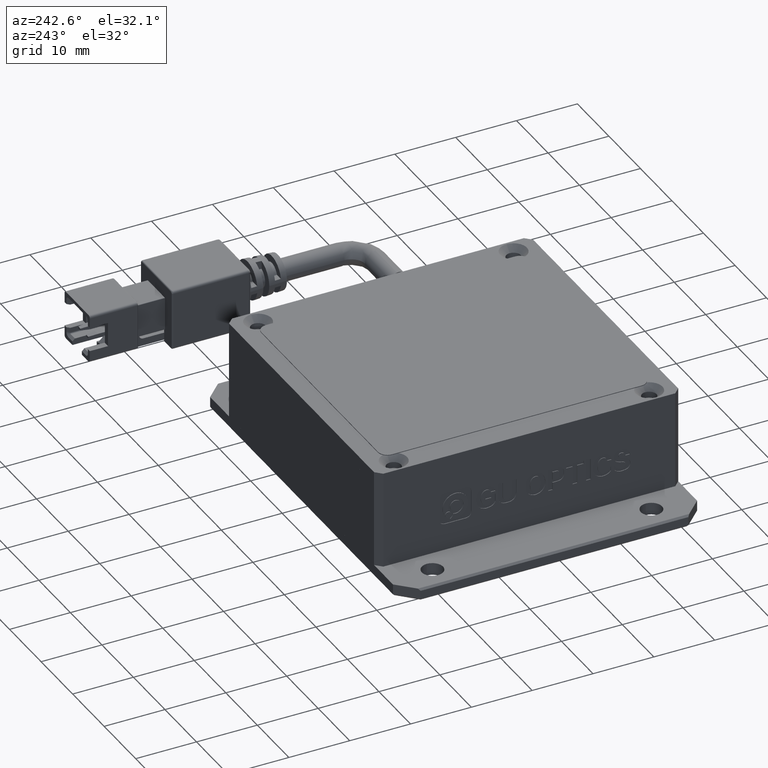
[diagram: clean part render]
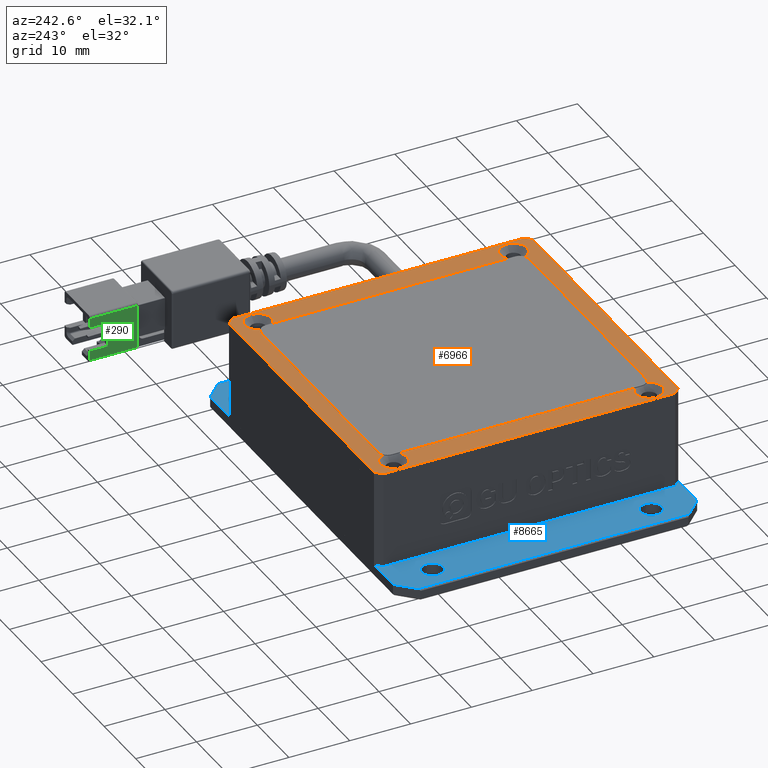
[diagram: same view with three faces highlighted in distinct colors, each labeled with its STEP entity id]
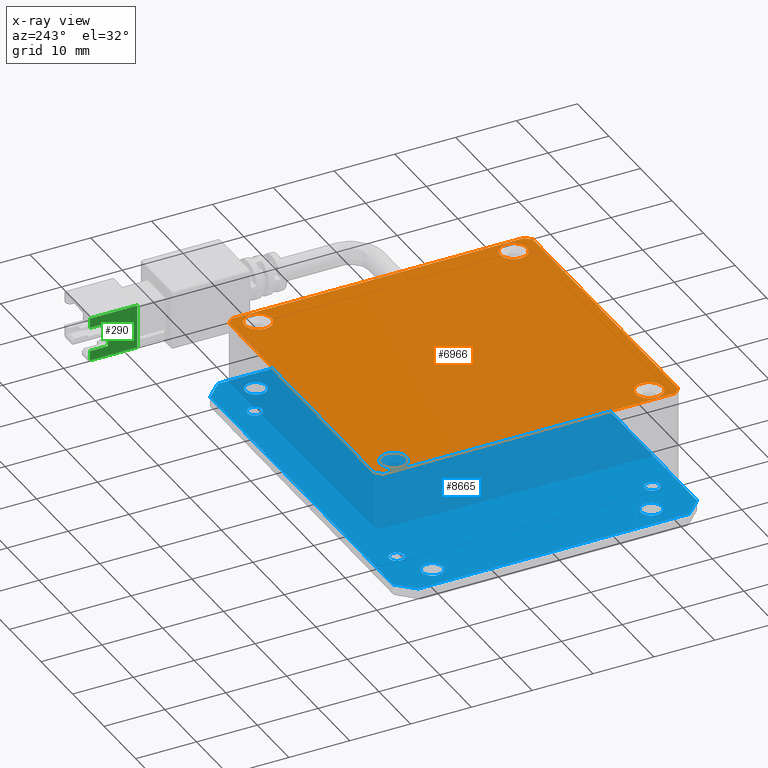
[diagram: x-ray of the same camera — body ghosted, the three highlighted faces saturated]
A machine part, auxiliary view with three faces highlighted in distinct colors.
The next image is the same camera in x-ray (body ghosted, the three faces saturated) — at least one of them is partly hidden behind the body in this view.
Their STEP definitions:

[orange] entity #6966 — the highlighted planar face has unit normal (0, 0, -1).
#237 = CARTESIAN_POINT ( 'NONE',  ( -22.40683466972127000, -18.70904925544099100, 16.00000000005008600 ) ) ;
#417 = CARTESIAN_POINT ( 'NONE',  ( 18.39316533031528400, 23.29095074455901200, 15.99999999999324300 ) ) ;
#648 = VECTOR ( 'NONE', #6314, 1000.000000000000000 ) ;
#847 = CARTESIAN_POINT ( 'NONE',  ( 22.09316533027871200, 27.29095074455903000, 15.99999999998369300 ) ) ;
#889 = CARTESIAN_POINT ( 'NONE',  ( 22.79316533024216400, 23.29095074455901200, 15.99999999999324300 ) ) ;
#1165 = ORIENTED_EDGE ( 'NONE', *, *, #14823, .T. ) ;
#1253 = LINE ( 'NONE', #20556, #4951 ) ;
#1276 = DIRECTION ( 'NONE',  ( 1.000000000000000000, 0.0000000000000000000, 0.0000000000000000000 ) ) ;
#1322 = AXIS2_PLACEMENT_3D ( 'NONE', #16640, #7126, #18227 ) ;
#1429 = CARTESIAN_POINT ( 'NONE',  ( 20.59316533027872600, 23.29095074455901200, 15.99999999999324300 ) ) ;
#1809 = DIRECTION ( 'NONE',  ( 1.000000000000000000, 0.0000000000000000000, 0.0000000000000000000 ) ) ;
#2340 = VERTEX_POINT ( 'NONE', #17451 ) ;
#2486 = VECTOR ( 'NONE', #9390, 1000.000000000000000 ) ;
#2978 = EDGE_LOOP ( 'NONE', ( #4871, #17509 ) ) ;
#3001 = DIRECTION ( 'NONE',  ( 1.000000000000000000, 0.0000000000000000000, 0.0000000000000000000 ) ) ;
#3069 = CARTESIAN_POINT ( 'NONE',  ( -24.90683466972127400, 26.29095074455902300, 15.99999999998369300 ) ) ;
#3167 = FACE_BOUND ( 'NONE', #2978, .T. ) ;
#3261 = EDGE_CURVE ( 'NONE', #19823, #4735, #10495, .T. ) ;
#3328 = VERTEX_POINT ( 'NONE', #12061 ) ;
#3345 = CARTESIAN_POINT ( 'NONE',  ( 23.09316533027872600, -21.70904925544096300, 15.99999999998369300 ) ) ;
#3460 = CARTESIAN_POINT ( 'NONE',  ( -23.90683466972126300, -22.70904925544097400, 15.99999999998369300 ) ) ;
#3569 = CARTESIAN_POINT ( 'NONE',  ( -23.90683466972125300, 27.29095074455903000, 15.99999999998369300 ) ) ;
#3595 = CARTESIAN_POINT ( 'NONE',  ( 22.09316533027870500, -22.70904925544097700, 15.99999999998369300 ) ) ;
#3687 = LINE ( 'NONE', #15417, #11578 ) ;
#3876 = VERTEX_POINT ( 'NONE', #19792 ) ;
#4159 = AXIS2_PLACEMENT_3D ( 'NONE', #17461, #7959, #19053 ) ;
#4249 = VERTEX_POINT ( 'NONE', #8899 ) ;
#4735 = VERTEX_POINT ( 'NONE', #889 ) ;
#4871 = ORIENTED_EDGE ( 'NONE', *, *, #13353, .F. ) ;
#4951 = VECTOR ( 'NONE', #15787, 1000.000000000000000 ) ;
#5028 = CARTESIAN_POINT ( 'NONE',  ( -22.40683466972127000, 23.29095074455901200, 16.00000000005008600 ) ) ;
#5320 = EDGE_CURVE ( 'NONE', #12945, #3876, #20092, .T. ) ;
#5478 = PLANE ( 'NONE',  #1322 ) ;
#5782 = VECTOR ( 'NONE', #11958, 1000.000000000000000 ) ;
#5837 = ORIENTED_EDGE ( 'NONE', *, *, #18772, .F. ) ;
#6161 = VECTOR ( 'NONE', #17628, 1000.000000000000100 ) ;
#6314 = DIRECTION ( 'NONE',  ( 0.7071067811865525700, 0.7071067811865425800, 0.0000000000000000000 ) ) ;
#6538 = VERTEX_POINT ( 'NONE', #12149 ) ;
#6583 = AXIS2_PLACEMENT_3D ( 'NONE', #18299, #8786, #19891 ) ;
#6604 = DIRECTION ( 'NONE',  ( 1.000000000000000000, 0.0000000000000000000, 0.0000000000000000000 ) ) ;
#6668 = LINE ( 'NONE', #18936, #2486 ) ;
#6689 = EDGE_CURVE ( 'NONE', #6538, #12250, #6668, .T. ) ;
#6776 = CARTESIAN_POINT ( 'NONE',  ( 22.79316533024216400, -18.70904925544099100, 15.99999999999324300 ) ) ;
#6798 = CIRCLE ( 'NONE', #13282, 2.199999999963439600 ) ;
#6846 = AXIS2_PLACEMENT_3D ( 'NONE', #20256, #10690, #1276 ) ;
#6957 = CARTESIAN_POINT ( 'NONE',  ( 22.09316533027871200, 27.29095074455903000, 15.99999999998369300 ) ) ;
#6966 = ADVANCED_FACE ( 'NONE', ( #11555, #20064, #7891, #7382, #3167 ), #5478, .F. ) ;
#7010 = CIRCLE ( 'NONE', #7322, 2.200000000013913000 ) ;
#7126 = DIRECTION ( 'NONE',  ( 0.0000000000000000000, 0.0000000000000000000, -1.000000000000000000 ) ) ;
#7319 = CARTESIAN_POINT ( 'NONE',  ( -22.40683466972127000, -18.70904925544099100, 16.00000000005008600 ) ) ;
#7322 = AXIS2_PLACEMENT_3D ( 'NONE', #237, #11217, #1809 ) ;
#7382 = FACE_BOUND ( 'NONE', #16284, .T. ) ;
#7571 = ORIENTED_EDGE ( 'NONE', *, *, #3261, .F. ) ;
#7749 = CIRCLE ( 'NONE', #6846, 2.199999999963439600 ) ;
#7752 = AXIS2_PLACEMENT_3D ( 'NONE', #5028, #16086, #6604 ) ;
#7891 = FACE_BOUND ( 'NONE', #12519, .T. ) ;
#7959 = DIRECTION ( 'NONE',  ( 0.0000000000000000000, -0.0000000000000000000, 1.000000000000000000 ) ) ;
#8070 = ORIENTED_EDGE ( 'NONE', *, *, #17635, .F. ) ;
#8120 = EDGE_CURVE ( 'NONE', #15684, #11821, #11190, .T. ) ;
#8171 = AXIS2_PLACEMENT_3D ( 'NONE', #7319, #18428, #8907 ) ;
#8306 = ORIENTED_EDGE ( 'NONE', *, *, #10576, .F. ) ;
#8554 = EDGE_LOOP ( 'NONE', ( #9287, #10271 ) ) ;
#8598 = VERTEX_POINT ( 'NONE', #16475 ) ;
#8754 = CIRCLE ( 'NONE', #8171, 2.200000000013913000 ) ;
#8786 = DIRECTION ( 'NONE',  ( 0.0000000000000000000, -0.0000000000000000000, 1.000000000000000000 ) ) ;
#8851 = DIRECTION ( 'NONE',  ( 0.0000000000000000000, -0.0000000000000000000, 1.000000000000000000 ) ) ;
#8899 = CARTESIAN_POINT ( 'NONE',  ( -24.90683466972127400, 26.29095074455902300, 15.99999999998369300 ) ) ;
#8907 = DIRECTION ( 'NONE',  ( 1.000000000000000000, 0.0000000000000000000, 0.0000000000000000000 ) ) ;
#8937 = VERTEX_POINT ( 'NONE', #6957 ) ;
#9024 = EDGE_CURVE ( 'NONE', #4249, #3876, #9947, .T. ) ;
#9287 = ORIENTED_EDGE ( 'NONE', *, *, #19163, .F. ) ;
#9390 = DIRECTION ( 'NONE',  ( 0.0000000000000000000, 1.000000000000000000, -0.0000000000000000000 ) ) ;
#9435 = VERTEX_POINT ( 'NONE', #3595 ) ;
#9801 = LINE ( 'NONE', #847, #14021 ) ;
#9947 = LINE ( 'NONE', #18332, #5782 ) ;
#10260 = DIRECTION ( 'NONE',  ( 0.7071067811865474600, -0.7071067811865474600, 0.0000000000000000000 ) ) ;
#10271 = ORIENTED_EDGE ( 'NONE', *, *, #8120, .F. ) ;
#10342 = LINE ( 'NONE', #3345, #6161 ) ;
#10495 = CIRCLE ( 'NONE', #6583, 2.199999999963439600 ) ;
#10576 = EDGE_CURVE ( 'NONE', #6538, #9435, #10342, .T. ) ;
#10690 = DIRECTION ( 'NONE',  ( 0.0000000000000000000, -0.0000000000000000000, 1.000000000000000000 ) ) ;
#10799 = CARTESIAN_POINT ( 'NONE',  ( -23.90683466972126700, -22.70904925544097400, 15.99999999998369300 ) ) ;
#10989 = ORIENTED_EDGE ( 'NONE', *, *, #9024, .T. ) ;
#11190 = CIRCLE ( 'NONE', #12727, 2.199999999963439600 ) ;
#11217 = DIRECTION ( 'NONE',  ( 0.0000000000000000000, -0.0000000000000000000, 1.000000000000000000 ) ) ;
#11528 = EDGE_LOOP ( 'NONE', ( #17493, #1165, #5837, #10989, #19996, #11985, #8306, #12482 ) ) ;
#11555 = FACE_OUTER_BOUND ( 'NONE', #11528, .T. ) ;
#11578 = VECTOR ( 'NONE', #17069, 1000.000000000000000 ) ;
#11584 = VECTOR ( 'NONE', #12386, 1000.000000000000000 ) ;
#11821 = VERTEX_POINT ( 'NONE', #6776 ) ;
#11958 = DIRECTION ( 'NONE',  ( 0.0000000000000000000, -1.000000000000000000, -0.0000000000000000000 ) ) ;
#11985 = ORIENTED_EDGE ( 'NONE', *, *, #15262, .T. ) ;
#12061 = CARTESIAN_POINT ( 'NONE',  ( -24.60683466973518600, -18.70904925544099100, 16.00000000005008600 ) ) ;
#12149 = CARTESIAN_POINT ( 'NONE',  ( 23.09316533027872600, -21.70904925544096600, 15.99999999998369300 ) ) ;
#12250 = VERTEX_POINT ( 'NONE', #12660 ) ;
#12386 = DIRECTION ( 'NONE',  ( -0.7071067811865474600, 0.7071067811865476800, 0.0000000000000000000 ) ) ;
#12440 = DIRECTION ( 'NONE',  ( 0.0000000000000000000, -0.0000000000000000000, 1.000000000000000000 ) ) ;
#12482 = ORIENTED_EDGE ( 'NONE', *, *, #6689, .T. ) ;
#12519 = EDGE_LOOP ( 'NONE', ( #15485, #7571 ) ) ;
#12660 = CARTESIAN_POINT ( 'NONE',  ( 23.09316533027872600, 26.29095074455901600, 15.99999999998369300 ) ) ;
#12687 = CIRCLE ( 'NONE', #4159, 2.200000000013913000 ) ;
#12727 = AXIS2_PLACEMENT_3D ( 'NONE', #18373, #8851, #19973 ) ;
#12945 = VERTEX_POINT ( 'NONE', #3460 ) ;
#13282 = AXIS2_PLACEMENT_3D ( 'NONE', #1429, #12440, #3001 ) ;
#13353 = EDGE_CURVE ( 'NONE', #19910, #2340, #12687, .T. ) ;
#14021 = VECTOR ( 'NONE', #10260, 1000.000000000000100 ) ;
#14084 = CIRCLE ( 'NONE', #7752, 2.200000000013913000 ) ;
#14823 = EDGE_CURVE ( 'NONE', #8937, #16161, #3687, .T. ) ;
#14831 = CARTESIAN_POINT ( 'NONE',  ( -20.20683466970735900, 23.29095074455901200, 16.00000000005008600 ) ) ;
#15262 = EDGE_CURVE ( 'NONE', #12945, #9435, #1253, .T. ) ;
#15417 = CARTESIAN_POINT ( 'NONE',  ( -24.90683466972127400, 27.29095074455903000, 15.99999999998369300 ) ) ;
#15485 = ORIENTED_EDGE ( 'NONE', *, *, #18728, .F. ) ;
#15684 = VERTEX_POINT ( 'NONE', #19979 ) ;
#15787 = DIRECTION ( 'NONE',  ( 1.000000000000000000, 0.0000000000000000000, -0.0000000000000000000 ) ) ;
#15997 = ORIENTED_EDGE ( 'NONE', *, *, #19541, .F. ) ;
#16086 = DIRECTION ( 'NONE',  ( 0.0000000000000000000, -0.0000000000000000000, 1.000000000000000000 ) ) ;
#16161 = VERTEX_POINT ( 'NONE', #3569 ) ;
#16284 = EDGE_LOOP ( 'NONE', ( #15997, #8070 ) ) ;
#16291 = EDGE_CURVE ( 'NONE', #8937, #12250, #9801, .T. ) ;
#16475 = CARTESIAN_POINT ( 'NONE',  ( -20.20683466970735900, -18.70904925544099100, 16.00000000005008600 ) ) ;
#16640 = CARTESIAN_POINT ( 'NONE',  ( -24.90683466972127400, 27.29095074455903000, 15.99999999998369300 ) ) ;
#16982 = LINE ( 'NONE', #3069, #648 ) ;
#17069 = DIRECTION ( 'NONE',  ( -1.000000000000000000, -0.0000000000000000000, -0.0000000000000000000 ) ) ;
#17451 = CARTESIAN_POINT ( 'NONE',  ( -24.60683466973518600, 23.29095074455901200, 16.00000000005008600 ) ) ;
#17461 = CARTESIAN_POINT ( 'NONE',  ( -22.40683466972127000, 23.29095074455901200, 16.00000000005008600 ) ) ;
#17493 = ORIENTED_EDGE ( 'NONE', *, *, #16291, .F. ) ;
#17509 = ORIENTED_EDGE ( 'NONE', *, *, #18322, .F. ) ;
#17628 = DIRECTION ( 'NONE',  ( -0.7071067811865500200, -0.7071067811865451300, 0.0000000000000000000 ) ) ;
#17635 = EDGE_CURVE ( 'NONE', #3328, #8598, #7010, .T. ) ;
#18227 = DIRECTION ( 'NONE',  ( -1.000000000000000000, 0.0000000000000000000, -0.0000000000000000000 ) ) ;
#18299 = CARTESIAN_POINT ( 'NONE',  ( 20.59316533027872600, 23.29095074455901200, 15.99999999999324300 ) ) ;
#18322 = EDGE_CURVE ( 'NONE', #2340, #19910, #14084, .T. ) ;
#18332 = CARTESIAN_POINT ( 'NONE',  ( -24.90683466972127400, -22.70904925544097400, 15.99999999998369300 ) ) ;
#18373 = CARTESIAN_POINT ( 'NONE',  ( 20.59316533027872600, -18.70904925544099100, 15.99999999999324300 ) ) ;
#18428 = DIRECTION ( 'NONE',  ( 0.0000000000000000000, -0.0000000000000000000, 1.000000000000000000 ) ) ;
#18728 = EDGE_CURVE ( 'NONE', #4735, #19823, #6798, .T. ) ;
#18772 = EDGE_CURVE ( 'NONE', #4249, #16161, #16982, .T. ) ;
#18936 = CARTESIAN_POINT ( 'NONE',  ( 23.09316533027872600, -22.70904925544097400, 15.99999999998369300 ) ) ;
#19053 = DIRECTION ( 'NONE',  ( 1.000000000000000000, 0.0000000000000000000, 0.0000000000000000000 ) ) ;
#19163 = EDGE_CURVE ( 'NONE', #11821, #15684, #7749, .T. ) ;
#19541 = EDGE_CURVE ( 'NONE', #8598, #3328, #8754, .T. ) ;
#19792 = CARTESIAN_POINT ( 'NONE',  ( -24.90683466972127400, -21.70904925544096300, 15.99999999998369300 ) ) ;
#19823 = VERTEX_POINT ( 'NONE', #417 ) ;
#19891 = DIRECTION ( 'NONE',  ( 1.000000000000000000, 0.0000000000000000000, 0.0000000000000000000 ) ) ;
#19910 = VERTEX_POINT ( 'NONE', #14831 ) ;
#19973 = DIRECTION ( 'NONE',  ( 1.000000000000000000, 0.0000000000000000000, 0.0000000000000000000 ) ) ;
#19979 = CARTESIAN_POINT ( 'NONE',  ( 18.39316533031528400, -18.70904925544099100, 15.99999999999324300 ) ) ;
#19996 = ORIENTED_EDGE ( 'NONE', *, *, #5320, .F. ) ;
#20064 = FACE_BOUND ( 'NONE', #8554, .T. ) ;
#20092 = LINE ( 'NONE', #10799, #11584 ) ;
#20256 = CARTESIAN_POINT ( 'NONE',  ( 20.59316533027872600, -18.70904925544099100, 15.99999999999324300 ) ) ;
#20556 = CARTESIAN_POINT ( 'NONE',  ( -24.90683466972127400, -22.70904925544097400, 15.99999999998369300 ) ) ;

[blue] entity #8665 — the highlighted planar face has unit normal (0, 0, 1).
#100 = DIRECTION ( 'NONE',  ( 0.0000000000000000000, 0.0000000000000000000, -1.000000000000000000 ) ) ;
#142 = EDGE_CURVE ( 'NONE', #20015, #10842, #20352, .T. ) ;
#173 = LINE ( 'NONE', #18503, #3321 ) ;
#251 = CARTESIAN_POINT ( 'NONE',  ( -28.90683466972127700, 20.29095074455904100, -1.630813539765796300E-011 ) ) ;
#267 = ORIENTED_EDGE ( 'NONE', *, *, #19793, .T. ) ;
#328 = ORIENTED_EDGE ( 'NONE', *, *, #16039, .T. ) ;
#357 = EDGE_CURVE ( 'NONE', #5492, #9845, #2466, .T. ) ;
#390 = CARTESIAN_POINT ( 'NONE',  ( -27.15683466972130900, -15.70904925544096300, -1.630813539765796300E-011 ) ) ;
#432 = AXIS2_PLACEMENT_3D ( 'NONE', #3016, #14049, #4625 ) ;
#769 = DIRECTION ( 'NONE',  ( -1.000000000000000000, 0.0000000000000000000, 0.0000000000000000000 ) ) ;
#1086 = DIRECTION ( 'NONE',  ( -1.000000000000000000, 0.0000000000000000000, 0.0000000000000000000 ) ) ;
#1242 = EDGE_CURVE ( 'NONE', #3403, #15852, #6113, .T. ) ;
#1374 = EDGE_LOOP ( 'NONE', ( #267, #12821 ) ) ;
#1385 = ORIENTED_EDGE ( 'NONE', *, *, #14413, .T. ) ;
#1397 = CARTESIAN_POINT ( 'NONE',  ( -28.90683466972129900, -15.70904925544096300, -1.630813539765796300E-011 ) ) ;
#1461 = CIRCLE ( 'NONE', #5524, 1.199999999999985700 ) ;
#1525 = CIRCLE ( 'NONE', #2548, 1.749999999999987600 ) ;
#1570 = CARTESIAN_POINT ( 'NONE',  ( 27.09316533027871900, 20.29095074455904100, -1.630813539765796300E-011 ) ) ;
#1598 = CARTESIAN_POINT ( 'NONE',  ( -29.90683466972125600, -22.70904925544097000, -1.630661751461648400E-011 ) ) ;
#1679 = CARTESIAN_POINT ( 'NONE',  ( 28.84316533027870500, -15.70904925544095600, -1.630813539765796300E-011 ) ) ;
#1817 = DIRECTION ( 'NONE',  ( -1.000000000000000000, 0.0000000000000000000, 0.0000000000000000000 ) ) ;
#2021 = CARTESIAN_POINT ( 'NONE',  ( -29.90683466972127700, 27.29095074455903400, -1.630813539765796300E-011 ) ) ;
#2139 = CIRCLE ( 'NONE', #10883, 1.749999999999987600 ) ;
#2157 = CARTESIAN_POINT ( 'NONE',  ( -32.60683466972128700, -20.00904925544095300, -1.630813539765796300E-011 ) ) ;
#2323 = CARTESIAN_POINT ( 'NONE',  ( -32.60683466972128700, 27.29095074455903400, -1.630813539765796300E-011 ) ) ;
#2466 = LINE ( 'NONE', #2157, #18830 ) ;
#2548 = AXIS2_PLACEMENT_3D ( 'NONE', #1397, #12410, #2973 ) ;
#2615 = VERTEX_POINT ( 'NONE', #4079 ) ;
#2686 = EDGE_CURVE ( 'NONE', #6434, #5492, #7152, .T. ) ;
#2800 = DIRECTION ( 'NONE',  ( 0.0000000000000000000, 0.0000000000000000000, -1.000000000000000000 ) ) ;
#2808 = EDGE_CURVE ( 'NONE', #15466, #5444, #17289, .T. ) ;
#2821 = FACE_BOUND ( 'NONE', #14359, .T. ) ;
#2825 = DIRECTION ( 'NONE',  ( 0.0000000000000000000, 0.0000000000000000000, 1.000000000000000000 ) ) ;
#2826 = DIRECTION ( 'NONE',  ( 0.0000000000000000000, 0.0000000000000000000, -1.000000000000000000 ) ) ;
#2897 = DIRECTION ( 'NONE',  ( 0.7071067811865493500, -0.7071067811865456900, -0.0000000000000000000 ) ) ;
#2973 = DIRECTION ( 'NONE',  ( -1.000000000000000000, 0.0000000000000000000, 0.0000000000000000000 ) ) ;
#3016 = CARTESIAN_POINT ( 'NONE',  ( 21.59316533027873300, -18.70904925544097000, -1.630640067418198700E-011 ) ) ;
#3043 = EDGE_CURVE ( 'NONE', #5444, #15466, #11495, .T. ) ;
#3120 = DIRECTION ( 'NONE',  ( -1.000000000000000000, 0.0000000000000000000, 0.0000000000000000000 ) ) ;
#3321 = VECTOR ( 'NONE', #10538, 1000.000000000000000 ) ;
#3369 = EDGE_CURVE ( 'NONE', #9845, #20563, #173, .T. ) ;
#3403 = VERTEX_POINT ( 'NONE', #12199 ) ;
#3426 = DIRECTION ( 'NONE',  ( 0.0000000000000000000, 0.0000000000000000000, -1.000000000000000000 ) ) ;
#3625 = CARTESIAN_POINT ( 'NONE',  ( -30.65683466972126700, 20.29095074455904100, -1.630813539765796300E-011 ) ) ;
#3720 = VERTEX_POINT ( 'NONE', #16173 ) ;
#3803 = FACE_BOUND ( 'NONE', #19349, .T. ) ;
#4079 = CARTESIAN_POINT ( 'NONE',  ( -24.60683466972125200, 23.29095074455903000, -1.630640067418198700E-011 ) ) ;
#4146 = DIRECTION ( 'NONE',  ( 0.0000000000000000000, 0.0000000000000000000, -1.000000000000000000 ) ) ;
#4261 = CIRCLE ( 'NONE', #17061, 1.199999999999985700 ) ;
#4328 = EDGE_LOOP ( 'NONE', ( #11183, #8561 ) ) ;
#4341 = DIRECTION ( 'NONE',  ( 0.0000000000000000000, 0.0000000000000000000, -1.000000000000000000 ) ) ;
#4373 = PLANE ( 'NONE',  #9065 ) ;
#4404 = EDGE_LOOP ( 'NONE', ( #13193, #14208, #4470, #6679, #11812, #4472, #7511, #16563 ) ) ;
#4470 = ORIENTED_EDGE ( 'NONE', *, *, #4954, .T. ) ;
#4472 = ORIENTED_EDGE ( 'NONE', *, *, #11766, .T. ) ;
#4523 = CARTESIAN_POINT ( 'NONE',  ( 27.09316533027871900, 20.29095074455904100, -1.630813539765796300E-011 ) ) ;
#4597 = AXIS2_PLACEMENT_3D ( 'NONE', #9500, #100, #11071 ) ;
#4625 = DIRECTION ( 'NONE',  ( -1.000000000000000000, 0.0000000000000000000, 0.0000000000000000000 ) ) ;
#4688 = CIRCLE ( 'NONE', #10171, 1.199999999999985700 ) ;
#4697 = ORIENTED_EDGE ( 'NONE', *, *, #8387, .T. ) ;
#4954 = EDGE_CURVE ( 'NONE', #20563, #20015, #11865, .T. ) ;
#5059 = VERTEX_POINT ( 'NONE', #6507 ) ;
#5097 = CARTESIAN_POINT ( 'NONE',  ( 27.09316533027871500, -15.70904925544095600, -1.630813539765796300E-011 ) ) ;
#5186 = DIRECTION ( 'NONE',  ( -1.000000000000000000, -0.0000000000000000000, -0.0000000000000000000 ) ) ;
#5265 = VECTOR ( 'NONE', #12502, 999.9999999999998900 ) ;
#5345 = EDGE_CURVE ( 'NONE', #6933, #16268, #10097, .T. ) ;
#5444 = VERTEX_POINT ( 'NONE', #3625 ) ;
#5492 = VERTEX_POINT ( 'NONE', #11691 ) ;
#5524 = AXIS2_PLACEMENT_3D ( 'NONE', #5777, #16880, #7360 ) ;
#5571 = EDGE_CURVE ( 'NONE', #3720, #5059, #1461, .T. ) ;
#5581 = CARTESIAN_POINT ( 'NONE',  ( 30.79316533027871500, -20.00904925544095300, -1.630789822843273200E-011 ) ) ;
#5613 = CIRCLE ( 'NONE', #15404, 1.199999999999985700 ) ;
#5630 = CARTESIAN_POINT ( 'NONE',  ( -32.60683466972128700, 24.59095074455902700, -1.630712799313936300E-011 ) ) ;
#5661 = CARTESIAN_POINT ( 'NONE',  ( 25.34316533027873000, -15.70904925544095600, -1.630813539765796300E-011 ) ) ;
#5777 = CARTESIAN_POINT ( 'NONE',  ( -23.40683466972126700, -18.70904925544097000, -1.630640067418198700E-011 ) ) ;
#5968 = EDGE_LOOP ( 'NONE', ( #12596, #20161 ) ) ;
#6097 = DIRECTION ( 'NONE',  ( -1.000000000000000000, 0.0000000000000000000, 0.0000000000000000000 ) ) ;
#6113 = CIRCLE ( 'NONE', #7987, 1.199999999999985700 ) ;
#6257 = CIRCLE ( 'NONE', #17182, 1.749999999999987600 ) ;
#6434 = VERTEX_POINT ( 'NONE', #5630 ) ;
#6507 = CARTESIAN_POINT ( 'NONE',  ( -22.20683466972128200, -18.70904925544097000, -1.630640067418198700E-011 ) ) ;
#6518 = FACE_BOUND ( 'NONE', #13827, .T. ) ;
#6606 = DIRECTION ( 'NONE',  ( -0.7071067811865456900, -0.7071067811865493500, 0.0000000000000000000 ) ) ;
#6630 = CARTESIAN_POINT ( 'NONE',  ( 28.09316533027870500, 27.29095074455903400, -1.630748487635447200E-011 ) ) ;
#6653 = VECTOR ( 'NONE', #10087, 1000.000000000000000 ) ;
#6678 = DIRECTION ( 'NONE',  ( -1.000000000000000000, 0.0000000000000000000, 0.0000000000000000000 ) ) ;
#6679 = ORIENTED_EDGE ( 'NONE', *, *, #142, .T. ) ;
#6722 = CARTESIAN_POINT ( 'NONE',  ( -27.15683466972129200, 20.29095074455904100, -1.630813539765796300E-011 ) ) ;
#6743 = VERTEX_POINT ( 'NONE', #1679 ) ;
#6867 = EDGE_LOOP ( 'NONE', ( #11539, #10081 ) ) ;
#6933 = VERTEX_POINT ( 'NONE', #13168 ) ;
#7027 = FACE_BOUND ( 'NONE', #4328, .T. ) ;
#7152 = LINE ( 'NONE', #2323, #6653 ) ;
#7360 = DIRECTION ( 'NONE',  ( -1.000000000000000000, 0.0000000000000000000, 0.0000000000000000000 ) ) ;
#7394 = EDGE_CURVE ( 'NONE', #5059, #3720, #5613, .T. ) ;
#7511 = ORIENTED_EDGE ( 'NONE', *, *, #12323, .T. ) ;
#7574 = LINE ( 'NONE', #12852, #15489 ) ;
#7618 = CARTESIAN_POINT ( 'NONE',  ( 28.84316533027870800, 20.29095074455904100, -1.630813539765796300E-011 ) ) ;
#7664 = VERTEX_POINT ( 'NONE', #7618 ) ;
#7689 = VECTOR ( 'NONE', #20553, 1000.000000000000000 ) ;
#7987 = AXIS2_PLACEMENT_3D ( 'NONE', #8409, #12930, #15046 ) ;
#8387 = EDGE_CURVE ( 'NONE', #2615, #10942, #13689, .T. ) ;
#8409 = CARTESIAN_POINT ( 'NONE',  ( 21.59316533027873300, 23.29095074455903000, -1.630640067418198700E-011 ) ) ;
#8561 = ORIENTED_EDGE ( 'NONE', *, *, #7394, .T. ) ;
#8633 = CARTESIAN_POINT ( 'NONE',  ( 22.79316533027872200, -18.70904925544097000, -1.630640067418198700E-011 ) ) ;
#8665 = ADVANCED_FACE ( 'NONE', ( #11688, #7027, #2821, #3803, #19187, #11178, #14939, #10699, #6518 ), #4373, .T. ) ;
#9034 = CARTESIAN_POINT ( 'NONE',  ( 25.34316533027873300, 20.29095074455904100, -1.630813539765796300E-011 ) ) ;
#9065 = AXIS2_PLACEMENT_3D ( 'NONE', #12252, #2825, #13845 ) ;
#9242 = EDGE_CURVE ( 'NONE', #10842, #17699, #9928, .T. ) ;
#9392 = VERTEX_POINT ( 'NONE', #390 ) ;
#9398 = CARTESIAN_POINT ( 'NONE',  ( 28.09316533027870500, -22.70904925544097000, -1.630813539765796300E-011 ) ) ;
#9500 = CARTESIAN_POINT ( 'NONE',  ( -23.40683466972126700, 23.29095074455903000, -1.630640067418198700E-011 ) ) ;
#9697 = VERTEX_POINT ( 'NONE', #15346 ) ;
#9760 = EDGE_CURVE ( 'NONE', #9392, #9697, #1525, .T. ) ;
#9845 = VERTEX_POINT ( 'NONE', #1598 ) ;
#9928 = LINE ( 'NONE', #17276, #5265 ) ;
#10081 = ORIENTED_EDGE ( 'NONE', *, *, #19934, .T. ) ;
#10087 = DIRECTION ( 'NONE',  ( -0.0000000000000000000, -1.000000000000000000, -0.0000000000000000000 ) ) ;
#10097 = CIRCLE ( 'NONE', #432, 1.199999999999985700 ) ;
#10154 = AXIS2_PLACEMENT_3D ( 'NONE', #251, #11228, #1817 ) ;
#10171 = AXIS2_PLACEMENT_3D ( 'NONE', #12871, #3426, #14500 ) ;
#10172 = DIRECTION ( 'NONE',  ( 0.0000000000000000000, 0.0000000000000000000, -1.000000000000000000 ) ) ;
#10473 = LINE ( 'NONE', #17650, #14699 ) ;
#10493 = DIRECTION ( 'NONE',  ( 0.0000000000000000000, 0.0000000000000000000, -1.000000000000000000 ) ) ;
#10532 = AXIS2_PLACEMENT_3D ( 'NONE', #5097, #16166, #6678 ) ;
#10538 = DIRECTION ( 'NONE',  ( 1.000000000000000000, 0.0000000000000000000, 0.0000000000000000000 ) ) ;
#10653 = CARTESIAN_POINT ( 'NONE',  ( -22.20683466972128200, 23.29095074455903000, -1.630640067418198700E-011 ) ) ;
#10699 = FACE_BOUND ( 'NONE', #15366, .T. ) ;
#10842 = VERTEX_POINT ( 'NONE', #15047 ) ;
#10883 = AXIS2_PLACEMENT_3D ( 'NONE', #20049, #10493, #1086 ) ;
#10942 = VERTEX_POINT ( 'NONE', #10653 ) ;
#11071 = DIRECTION ( 'NONE',  ( -1.000000000000000000, 0.0000000000000000000, 0.0000000000000000000 ) ) ;
#11178 = FACE_BOUND ( 'NONE', #1374, .T. ) ;
#11183 = ORIENTED_EDGE ( 'NONE', *, *, #5571, .T. ) ;
#11228 = DIRECTION ( 'NONE',  ( 0.0000000000000000000, 0.0000000000000000000, -1.000000000000000000 ) ) ;
#11353 = EDGE_CURVE ( 'NONE', #9697, #9392, #2139, .T. ) ;
#11495 = CIRCLE ( 'NONE', #10154, 1.749999999999987600 ) ;
#11539 = ORIENTED_EDGE ( 'NONE', *, *, #1242, .T. ) ;
#11660 = CIRCLE ( 'NONE', #10532, 1.749999999999987600 ) ;
#11688 = FACE_OUTER_BOUND ( 'NONE', #4404, .T. ) ;
#11691 = CARTESIAN_POINT ( 'NONE',  ( -32.60683466972128700, -20.00904925544095300, -1.630720027328419500E-011 ) ) ;
#11766 = EDGE_CURVE ( 'NONE', #17699, #17259, #10473, .T. ) ;
#11812 = ORIENTED_EDGE ( 'NONE', *, *, #9242, .T. ) ;
#11865 = LINE ( 'NONE', #9398, #7689 ) ;
#12013 = VERTEX_POINT ( 'NONE', #9034 ) ;
#12199 = CARTESIAN_POINT ( 'NONE',  ( 20.39316533027874800, 23.29095074455903000, -1.630640067418198700E-011 ) ) ;
#12232 = CARTESIAN_POINT ( 'NONE',  ( -23.40683466972126700, 23.29095074455903000, -1.630640067418198700E-011 ) ) ;
#12252 = CARTESIAN_POINT ( 'NONE',  ( 31.09316533027871900, 27.29095074455903400, -1.630813539765796300E-011 ) ) ;
#12253 = CARTESIAN_POINT ( 'NONE',  ( 27.09316533027871500, -15.70904925544095600, -1.630813539765796300E-011 ) ) ;
#12323 = EDGE_CURVE ( 'NONE', #17259, #6434, #7574, .T. ) ;
#12410 = DIRECTION ( 'NONE',  ( 0.0000000000000000000, 0.0000000000000000000, -1.000000000000000000 ) ) ;
#12502 = DIRECTION ( 'NONE',  ( -0.7071067811865511300, 0.7071067811865440200, 0.0000000000000000000 ) ) ;
#12579 = DIRECTION ( 'NONE',  ( 0.0000000000000000000, 0.0000000000000000000, -1.000000000000000000 ) ) ;
#12596 = ORIENTED_EDGE ( 'NONE', *, *, #14441, .T. ) ;
#12821 = ORIENTED_EDGE ( 'NONE', *, *, #13779, .T. ) ;
#12852 = CARTESIAN_POINT ( 'NONE',  ( -29.90683466972127700, 27.29095074455903400, -1.630813539765796300E-011 ) ) ;
#12871 = CARTESIAN_POINT ( 'NONE',  ( 21.59316533027873300, -18.70904925544097000, -1.630640067418198700E-011 ) ) ;
#12930 = DIRECTION ( 'NONE',  ( 0.0000000000000000000, 0.0000000000000000000, -1.000000000000000000 ) ) ;
#13164 = AXIS2_PLACEMENT_3D ( 'NONE', #4523, #15552, #6097 ) ;
#13168 = CARTESIAN_POINT ( 'NONE',  ( 20.39316533027874800, -18.70904925544097000, -1.630640067418198700E-011 ) ) ;
#13193 = ORIENTED_EDGE ( 'NONE', *, *, #357, .T. ) ;
#13559 = CARTESIAN_POINT ( 'NONE',  ( -23.40683466972126700, -18.70904925544097000, -1.630640067418198700E-011 ) ) ;
#13689 = CIRCLE ( 'NONE', #4597, 1.199999999999985700 ) ;
#13738 = CARTESIAN_POINT ( 'NONE',  ( -28.90683466972127700, 20.29095074455904100, -1.630813539765796300E-011 ) ) ;
#13779 = EDGE_CURVE ( 'NONE', #6743, #19508, #6257, .T. ) ;
#13819 = DIRECTION ( 'NONE',  ( -1.000000000000000000, 0.0000000000000000000, 0.0000000000000000000 ) ) ;
#13827 = EDGE_LOOP ( 'NONE', ( #18649, #14092 ) ) ;
#13845 = DIRECTION ( 'NONE',  ( 1.000000000000000000, 0.0000000000000000000, 0.0000000000000000000 ) ) ;
#13846 = DIRECTION ( 'NONE',  ( -1.000000000000000000, 0.0000000000000000000, 0.0000000000000000000 ) ) ;
#14049 = DIRECTION ( 'NONE',  ( 0.0000000000000000000, 0.0000000000000000000, -1.000000000000000000 ) ) ;
#14092 = ORIENTED_EDGE ( 'NONE', *, *, #2808, .T. ) ;
#14208 = ORIENTED_EDGE ( 'NONE', *, *, #3369, .T. ) ;
#14359 = EDGE_LOOP ( 'NONE', ( #4697, #1385 ) ) ;
#14413 = EDGE_CURVE ( 'NONE', #10942, #2615, #4261, .T. ) ;
#14440 = CIRCLE ( 'NONE', #13164, 1.749999999999987600 ) ;
#14441 = EDGE_CURVE ( 'NONE', #12013, #7664, #15864, .T. ) ;
#14500 = DIRECTION ( 'NONE',  ( -1.000000000000000000, 0.0000000000000000000, 0.0000000000000000000 ) ) ;
#14587 = ORIENTED_EDGE ( 'NONE', *, *, #5345, .T. ) ;
#14699 = VECTOR ( 'NONE', #5186, 1000.000000000000000 ) ;
#14939 = FACE_BOUND ( 'NONE', #5968, .T. ) ;
#15046 = DIRECTION ( 'NONE',  ( -1.000000000000000000, 0.0000000000000000000, 0.0000000000000000000 ) ) ;
#15047 = CARTESIAN_POINT ( 'NONE',  ( 30.79316533027871500, 24.59095074455904500, -1.630778980821548400E-011 ) ) ;
#15187 = DIRECTION ( 'NONE',  ( -1.000000000000000000, 0.0000000000000000000, 0.0000000000000000000 ) ) ;
#15346 = CARTESIAN_POINT ( 'NONE',  ( -30.65683466972128500, -15.70904925544096300, -1.630813539765796300E-011 ) ) ;
#15360 = DIRECTION ( 'NONE',  ( -1.000000000000000000, 0.0000000000000000000, 0.0000000000000000000 ) ) ;
#15366 = EDGE_LOOP ( 'NONE', ( #16004, #16021 ) ) ;
#15404 = AXIS2_PLACEMENT_3D ( 'NONE', #13559, #4146, #15187 ) ;
#15466 = VERTEX_POINT ( 'NONE', #6722 ) ;
#15489 = VECTOR ( 'NONE', #6606, 1000.000000000000000 ) ;
#15552 = DIRECTION ( 'NONE',  ( 0.0000000000000000000, 0.0000000000000000000, -1.000000000000000000 ) ) ;
#15852 = VERTEX_POINT ( 'NONE', #20395 ) ;
#15864 = CIRCLE ( 'NONE', #18102, 1.749999999999987600 ) ;
#16004 = ORIENTED_EDGE ( 'NONE', *, *, #11353, .T. ) ;
#16007 = DIRECTION ( 'NONE',  ( 0.0000000000000000000, 1.000000000000000000, 0.0000000000000000000 ) ) ;
#16021 = ORIENTED_EDGE ( 'NONE', *, *, #9760, .T. ) ;
#16039 = EDGE_CURVE ( 'NONE', #16268, #6933, #4688, .T. ) ;
#16166 = DIRECTION ( 'NONE',  ( 0.0000000000000000000, 0.0000000000000000000, -1.000000000000000000 ) ) ;
#16173 = CARTESIAN_POINT ( 'NONE',  ( -24.60683466972125200, -18.70904925544097000, -1.630640067418198700E-011 ) ) ;
#16268 = VERTEX_POINT ( 'NONE', #8633 ) ;
#16523 = CARTESIAN_POINT ( 'NONE',  ( 30.79316533027871100, 27.29095074455903400, -1.630813539765796300E-011 ) ) ;
#16563 = ORIENTED_EDGE ( 'NONE', *, *, #2686, .T. ) ;
#16880 = DIRECTION ( 'NONE',  ( 0.0000000000000000000, 0.0000000000000000000, -1.000000000000000000 ) ) ;
#17061 = AXIS2_PLACEMENT_3D ( 'NONE', #12232, #2800, #13819 ) ;
#17182 = AXIS2_PLACEMENT_3D ( 'NONE', #12253, #2826, #13846 ) ;
#17259 = VERTEX_POINT ( 'NONE', #2021 ) ;
#17276 = CARTESIAN_POINT ( 'NONE',  ( 30.79316533027871800, 24.59095074455904500, -1.630813539765796300E-011 ) ) ;
#17289 = CIRCLE ( 'NONE', #17362, 1.749999999999987600 ) ;
#17362 = AXIS2_PLACEMENT_3D ( 'NONE', #13738, #4341, #15360 ) ;
#17650 = CARTESIAN_POINT ( 'NONE',  ( 31.09316533027871900, 27.29095074455903400, -1.630813539765796300E-011 ) ) ;
#17699 = VERTEX_POINT ( 'NONE', #6630 ) ;
#18102 = AXIS2_PLACEMENT_3D ( 'NONE', #1570, #12579, #3120 ) ;
#18331 = CARTESIAN_POINT ( 'NONE',  ( 28.09316533027870800, -22.70904925544097000, -1.630813539765796300E-011 ) ) ;
#18503 = CARTESIAN_POINT ( 'NONE',  ( 31.09316533027871900, -22.70904925544097000, -1.630813539765796300E-011 ) ) ;
#18649 = ORIENTED_EDGE ( 'NONE', *, *, #3043, .T. ) ;
#18830 = VECTOR ( 'NONE', #2897, 1000.000000000000000 ) ;
#19186 = EDGE_CURVE ( 'NONE', #7664, #12013, #14440, .T. ) ;
#19187 = FACE_BOUND ( 'NONE', #6867, .T. ) ;
#19272 = AXIS2_PLACEMENT_3D ( 'NONE', #19724, #10172, #769 ) ;
#19349 = EDGE_LOOP ( 'NONE', ( #14587, #328 ) ) ;
#19508 = VERTEX_POINT ( 'NONE', #5661 ) ;
#19589 = VECTOR ( 'NONE', #16007, 1000.000000000000000 ) ;
#19724 = CARTESIAN_POINT ( 'NONE',  ( 21.59316533027873300, 23.29095074455903000, -1.630640067418198700E-011 ) ) ;
#19793 = EDGE_CURVE ( 'NONE', #19508, #6743, #11660, .T. ) ;
#19934 = EDGE_CURVE ( 'NONE', #15852, #3403, #20402, .T. ) ;
#20015 = VERTEX_POINT ( 'NONE', #5581 ) ;
#20049 = CARTESIAN_POINT ( 'NONE',  ( -28.90683466972129900, -15.70904925544096300, -1.630813539765796300E-011 ) ) ;
#20161 = ORIENTED_EDGE ( 'NONE', *, *, #19186, .T. ) ;
#20352 = LINE ( 'NONE', #16523, #19589 ) ;
#20395 = CARTESIAN_POINT ( 'NONE',  ( 22.79316533027872200, 23.29095074455903000, -1.630640067418198700E-011 ) ) ;
#20402 = CIRCLE ( 'NONE', #19272, 1.199999999999985700 ) ;
#20553 = DIRECTION ( 'NONE',  ( 0.7071067811865465700, 0.7071067811865485700, 0.0000000000000000000 ) ) ;
#20563 = VERTEX_POINT ( 'NONE', #18331 ) ;

[green] entity #290 — the highlighted planar face has unit normal (1, 0, 0).
#290 = ADVANCED_FACE ( 'NONE', ( #19074 ), #19528, .F. ) ;
#1182 = CARTESIAN_POINT ( 'NONE',  ( 43.09316533027874400, 39.29095074455904100, 2.999999999983691700 ) ) ;
#1233 = CARTESIAN_POINT ( 'NONE',  ( 43.09316533027874400, 39.29095074455904100, 8.599999999983692700 ) ) ;
#1494 = VECTOR ( 'NONE', #18543, 1000.000000000000000 ) ;
#2438 = ORIENTED_EDGE ( 'NONE', *, *, #12350, .F. ) ;
#2626 = CARTESIAN_POINT ( 'NONE',  ( 43.09316533027874400, 39.29095074455904100, 6.999999999983691300 ) ) ;
#2884 = LINE ( 'NONE', #16165, #16002 ) ;
#3674 = DIRECTION ( 'NONE',  ( 3.081487911019577400E-033, -1.000000000000000000, 2.672764710092188000E-049 ) ) ;
#3914 = ORIENTED_EDGE ( 'NONE', *, *, #6007, .F. ) ;
#4020 = LINE ( 'NONE', #9224, #20398 ) ;
#4167 = ORIENTED_EDGE ( 'NONE', *, *, #7929, .F. ) ;
#4391 = EDGE_CURVE ( 'NONE', #14139, #7208, #4020, .T. ) ;
#4602 = LINE ( 'NONE', #12960, #8787 ) ;
#4778 = CARTESIAN_POINT ( 'NONE',  ( 43.09316533027873700, 31.49095074455902900, 8.599999999983692700 ) ) ;
#5129 = DIRECTION ( 'NONE',  ( -3.081487911019577400E-033, 1.000000000000000000, -2.672764710092188000E-049 ) ) ;
#5242 = EDGE_CURVE ( 'NONE', #8388, #14139, #9852, .T. ) ;
#5262 = VERTEX_POINT ( 'NONE', #1182 ) ;
#5273 = CARTESIAN_POINT ( 'NONE',  ( 43.09316533027874400, 39.29095074455904100, 2.999999999983691700 ) ) ;
#5424 = VERTEX_POINT ( 'NONE', #14687 ) ;
#6007 = EDGE_CURVE ( 'NONE', #5262, #10211, #16128, .T. ) ;
#6564 = LINE ( 'NONE', #13330, #14990 ) ;
#6676 = CARTESIAN_POINT ( 'NONE',  ( 43.09316533027874400, 39.29095074455904100, 8.599999999983692700 ) ) ;
#6888 = ORIENTED_EDGE ( 'NONE', *, *, #4391, .F. ) ;
#7208 = VERTEX_POINT ( 'NONE', #8279 ) ;
#7367 = CARTESIAN_POINT ( 'NONE',  ( 43.09316533027874400, 31.49095074455902900, 8.999999999983691300 ) ) ;
#7725 = LINE ( 'NONE', #12658, #11394 ) ;
#7929 = EDGE_CURVE ( 'NONE', #5424, #16372, #4602, .T. ) ;
#8279 = CARTESIAN_POINT ( 'NONE',  ( 43.09316533027874400, 39.29095074455904100, 1.399999999983690700 ) ) ;
#8388 = VERTEX_POINT ( 'NONE', #4778 ) ;
#8787 = VECTOR ( 'NONE', #5129, 1000.000000000000000 ) ;
#9224 = CARTESIAN_POINT ( 'NONE',  ( 43.09316533027874400, 39.29095074455904100, 1.399999999983690700 ) ) ;
#9568 = ORIENTED_EDGE ( 'NONE', *, *, #16709, .F. ) ;
#9852 = LINE ( 'NONE', #7367, #1494 ) ;
#10211 = VERTEX_POINT ( 'NONE', #19748 ) ;
#10539 = ORIENTED_EDGE ( 'NONE', *, *, #14430, .F. ) ;
#10712 = AXIS2_PLACEMENT_3D ( 'NONE', #14510, #14434, #14382 ) ;
#11394 = VECTOR ( 'NONE', #12779, 1000.000000000000000 ) ;
#11874 = VECTOR ( 'NONE', #3674, 1000.000000000000000 ) ;
#12117 = LINE ( 'NONE', #1233, #20128 ) ;
#12350 = EDGE_CURVE ( 'NONE', #10211, #5424, #2884, .T. ) ;
#12359 = VERTEX_POINT ( 'NONE', #6676 ) ;
#12658 = CARTESIAN_POINT ( 'NONE',  ( 43.09316533027874400, 39.29095074455904100, 8.999999999983691300 ) ) ;
#12779 = DIRECTION ( 'NONE',  ( -8.673617379884010800E-017, -0.0000000000000000000, 1.000000000000000000 ) ) ;
#12850 = CARTESIAN_POINT ( 'NONE',  ( 43.09316533027873700, 31.49095074455902900, 1.399999999983690700 ) ) ;
#12960 = CARTESIAN_POINT ( 'NONE',  ( 43.09316533027874400, 39.29095074455904100, 6.999999999983691300 ) ) ;
#13330 = CARTESIAN_POINT ( 'NONE',  ( 43.09316533027874400, 39.29095074455904100, 8.999999999983691300 ) ) ;
#14010 = EDGE_CURVE ( 'NONE', #16372, #12359, #7725, .T. ) ;
#14139 = VERTEX_POINT ( 'NONE', #12850 ) ;
#14266 = ORIENTED_EDGE ( 'NONE', *, *, #5242, .F. ) ;
#14382 = DIRECTION ( 'NONE',  ( 8.673617379884010800E-017, 0.0000000000000000000, -1.000000000000000000 ) ) ;
#14430 = EDGE_CURVE ( 'NONE', #12359, #8388, #12117, .T. ) ;
#14434 = DIRECTION ( 'NONE',  ( 1.000000000000000000, 3.081487911019577400E-033, 8.673617379884010800E-017 ) ) ;
#14510 = CARTESIAN_POINT ( 'NONE',  ( 43.09316533027874400, 39.29095074455904100, 8.999999999983691300 ) ) ;
#14687 = CARTESIAN_POINT ( 'NONE',  ( 43.09316533027874400, 36.29095074455903400, 6.999999999983691300 ) ) ;
#14896 = DIRECTION ( 'NONE',  ( -8.673617379884010800E-017, -0.0000000000000000000, 1.000000000000000000 ) ) ;
#14990 = VECTOR ( 'NONE', #14896, 1000.000000000000000 ) ;
#15597 = DIRECTION ( 'NONE',  ( -3.081487911019577400E-033, 1.000000000000000000, -2.672764710092188000E-049 ) ) ;
#16002 = VECTOR ( 'NONE', #16089, 1000.000000000000000 ) ;
#16089 = DIRECTION ( 'NONE',  ( -8.673617379884010800E-017, -0.0000000000000000000, 1.000000000000000000 ) ) ;
#16128 = LINE ( 'NONE', #5273, #11874 ) ;
#16165 = CARTESIAN_POINT ( 'NONE',  ( 43.09316533027874400, 36.29095074455903400, 8.999999999983691300 ) ) ;
#16289 = ORIENTED_EDGE ( 'NONE', *, *, #14010, .F. ) ;
#16372 = VERTEX_POINT ( 'NONE', #2626 ) ;
#16709 = EDGE_CURVE ( 'NONE', #7208, #5262, #6564, .T. ) ;
#17019 = DIRECTION ( 'NONE',  ( 3.081487911019577400E-033, -1.000000000000000000, 2.672764710092188000E-049 ) ) ;
#18543 = DIRECTION ( 'NONE',  ( 8.673617379884010800E-017, -0.0000000000000000000, -1.000000000000000000 ) ) ;
#19024 = EDGE_LOOP ( 'NONE', ( #14266, #10539, #16289, #4167, #2438, #3914, #9568, #6888 ) ) ;
#19074 = FACE_OUTER_BOUND ( 'NONE', #19024, .T. ) ;
#19528 = PLANE ( 'NONE',  #10712 ) ;
#19748 = CARTESIAN_POINT ( 'NONE',  ( 43.09316533027874400, 36.29095074455903400, 2.999999999983691700 ) ) ;
#20128 = VECTOR ( 'NONE', #17019, 1000.000000000000000 ) ;
#20398 = VECTOR ( 'NONE', #15597, 1000.000000000000000 ) ;